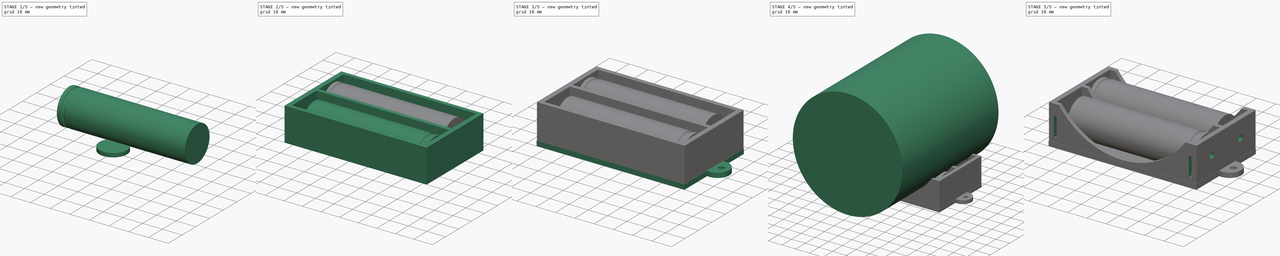
[diagram: build sequence overview — one tinted view per stage of 5, left to right]
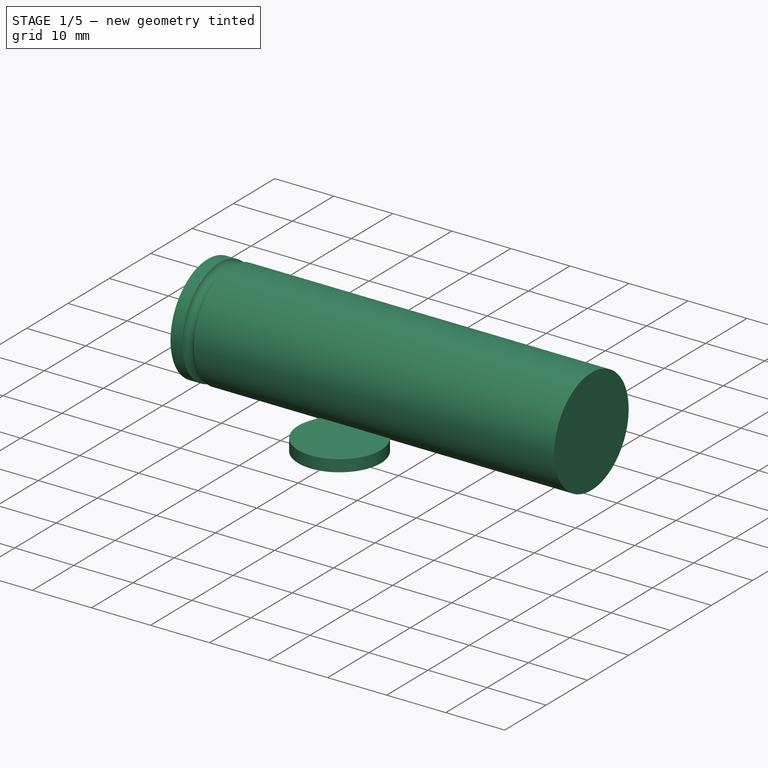
[diagram: stage 1 of 5 — iso view after this stage's code; geometry added in this stage tinted green]
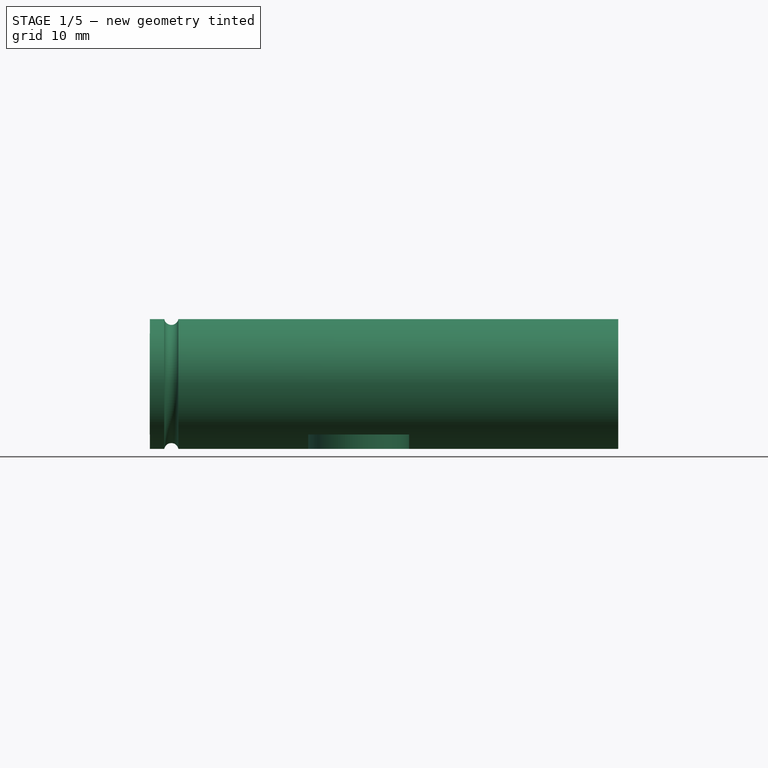
[diagram: stage 1 of 5 — front view after this stage's code; geometry added in this stage tinted green]
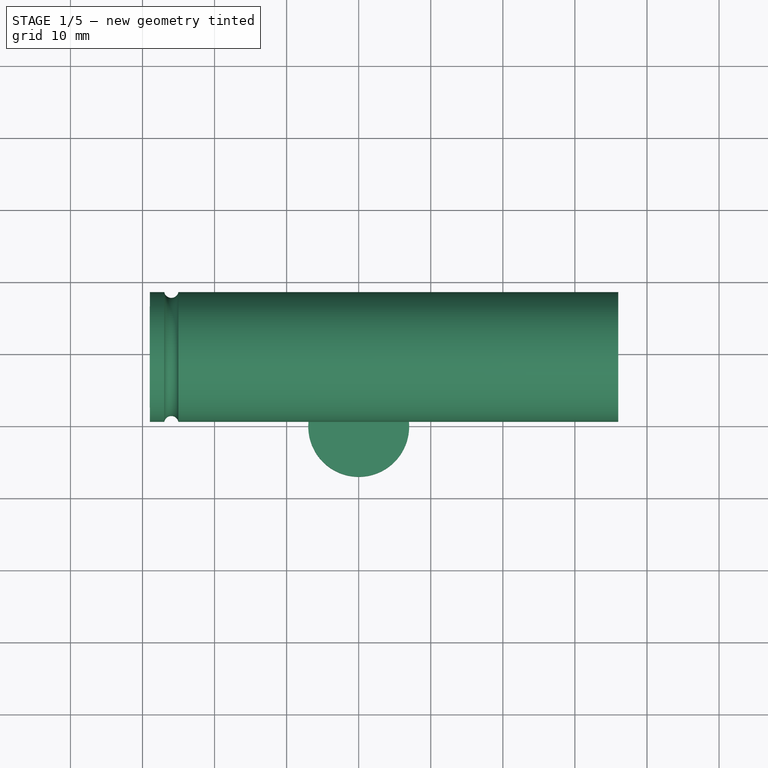
[diagram: stage 1 of 5 — top view after this stage's code; geometry added in this stage tinted green]
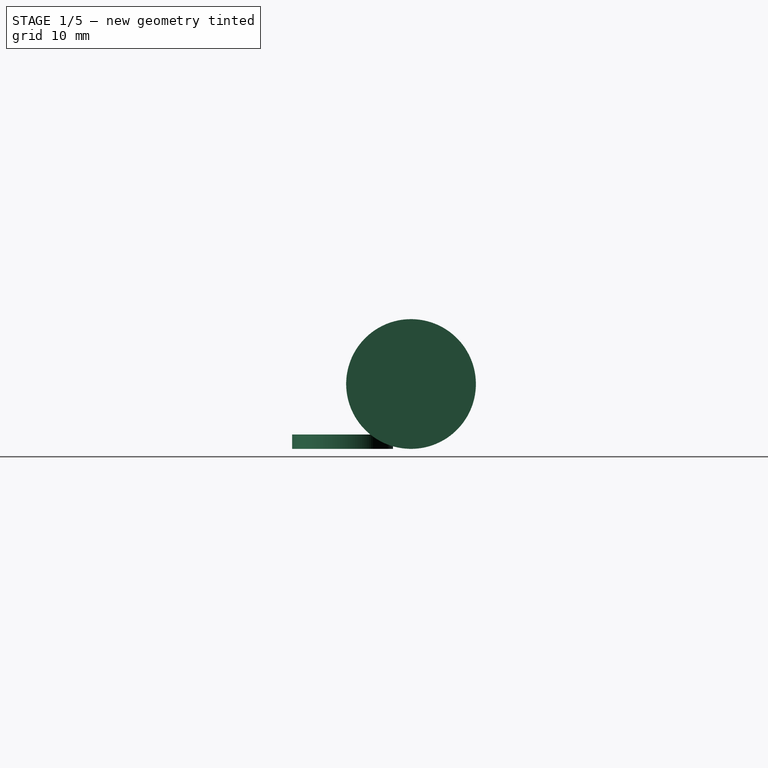
[diagram: stage 1 of 5 — right view after this stage's code; geometry added in this stage tinted green]
FCSTD DOCUMENT  (FreeCAD 0.18R16131 (Git))
Label: CajaBateriaLipo
License: All rights reserved
LicenseURL: http://en.wikipedia.org/wiki/All_rights_reserved
objects: Part::Cylinder×13, Part::MultiFuse×8, Part::Extrusion×7, Part::Cut×5, Part::Part2DObjectPython×4, Part::Torus×2, Sketcher::SketchObject×1, Part::Box×1
note: 41 computed .brp shape members not serialized (recipe doc carries the construction recipe); baked Part::Feature solids carry a one-line shape summary decoded from their .brp

FEATURE [Part::Torus] Torus001  label="Toro001"
  Angle1 = -180
  Angle2 = 180
  Angle3 = 360
  AttacherType = Attacher::AttachEngine3D
  Placement = pos=(0,0,3) rot=(0,0,1;0rad)
  Radius1 = 9.2
  Radius2 = 1
FEATURE [Part::Cylinder] Cylinder004  label="Cilindro004"
  Angle = 360
  AttacherType = Attacher::AttachEngine3D
  Height = 2
  Radius = 7
FEATURE [Part::Cylinder] Cylinder002  label="Cilindro002"
  Angle = 360
  AttacherType = Attacher::AttachEngine3D
  Height = 2
  Radius = 7
FEATURE [Part::Cylinder] Cylinder005  label="Cilindro005"
  Angle = 360
  AttacherType = Attacher::AttachEngine3D
  Height = 65
  Placement = pos=(0,0,0.02) rot=(0,0,1;0rad)
  Radius = 9
FEATURE [Part::Cut] Cut001
  Base = -> Cylinder005
  Tool = -> Torus001
FEATURE [Part::Cylinder] Cylinder003  label="Cilindro003"
  Angle = 360
  AttacherType = Attacher::AttachEngine3D
  Height = 2
  Radius = 4.5
FEATURE [Part::MultiFuse] Fusion001  label="Lipo 18651"
  Placement = pos=(-29,9.5,9) rot=(0,1,0;1.5708rad)
  Shapes = -> [Cut001,Cylinder003,Cylinder004]
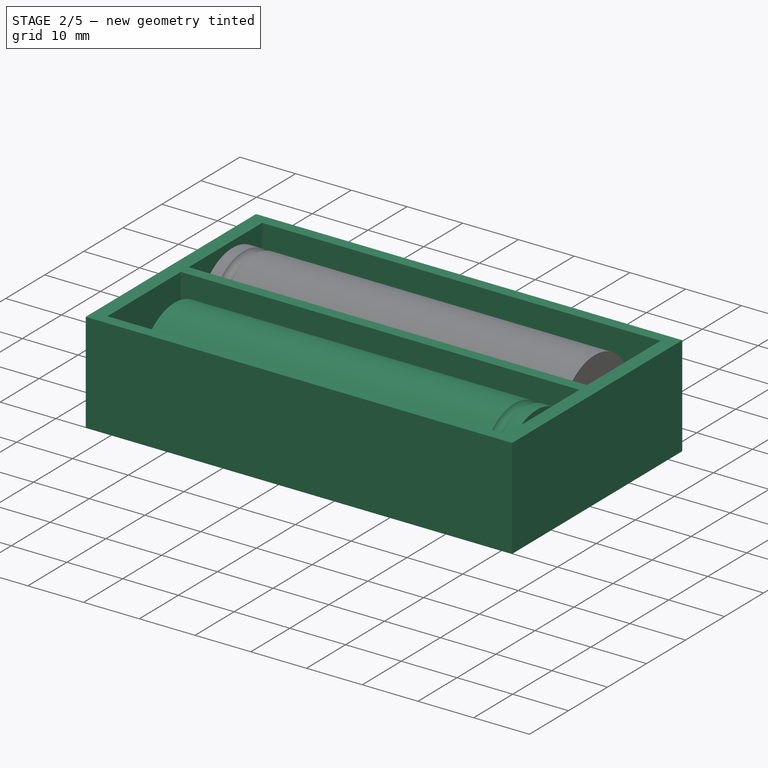
[diagram: stage 2 of 5 — iso view after this stage's code; geometry added in this stage tinted green]
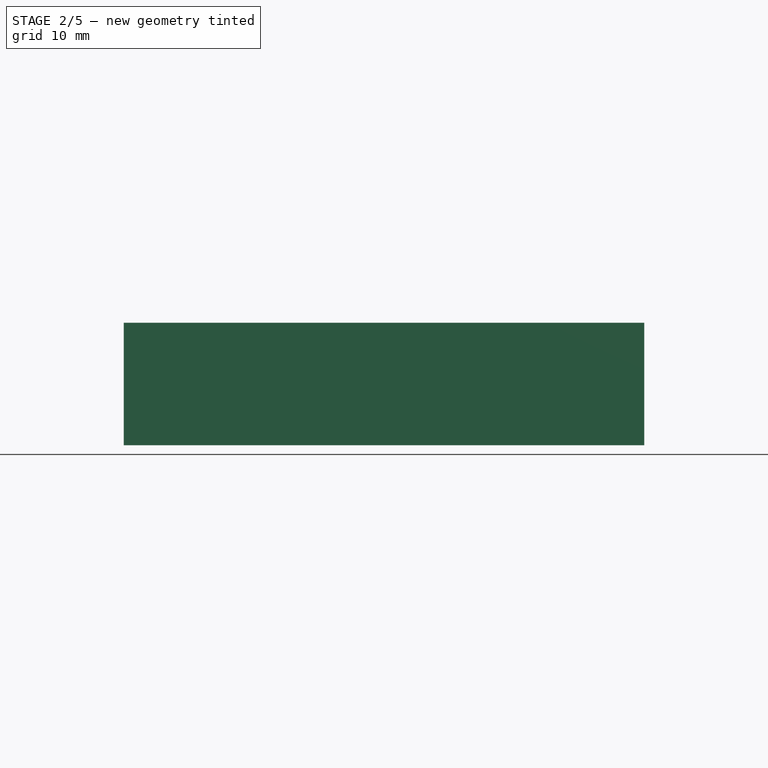
[diagram: stage 2 of 5 — front view after this stage's code; geometry added in this stage tinted green]
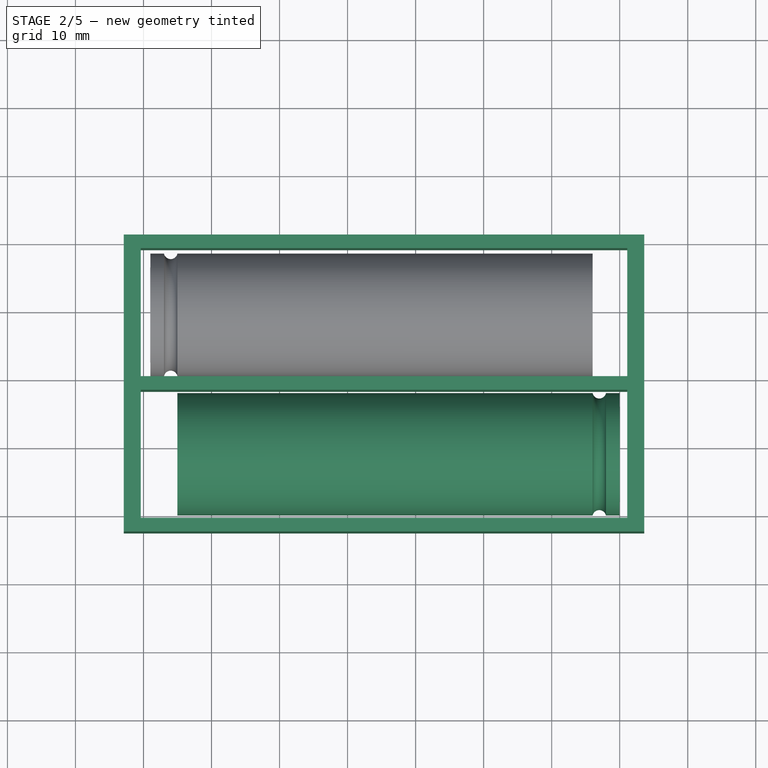
[diagram: stage 2 of 5 — top view after this stage's code; geometry added in this stage tinted green]
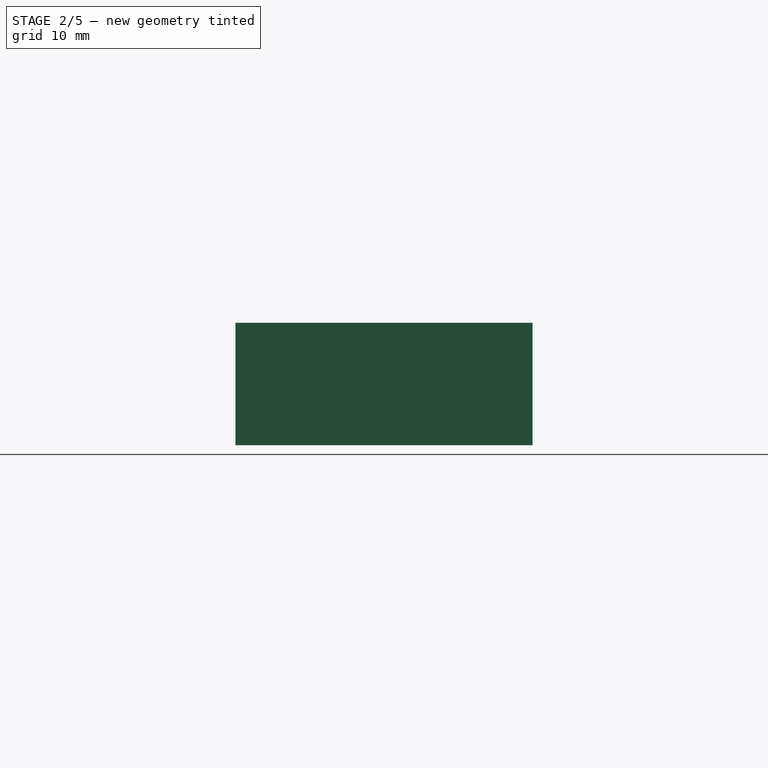
[diagram: stage 2 of 5 — right view after this stage's code; geometry added in this stage tinted green]
FEATURE [Part::Extrusion] Extrude  label="Caja lateral"
  Base = -> Sketch
  Dir = (0,0,1)
  DirMode = 2
  FaceMakerClass = Part::FaceMakerBullseye
  LengthFwd = 18
  LengthRev = 0
  Solid = true
  Symmetric = false
FEATURE [Part::Torus] Torus  label="Toro"
  Angle1 = -180
  Angle2 = 180
  Angle3 = 360
  AttacherType = Attacher::AttachEngine3D
  Placement = pos=(0,0,3) rot=(0,0,1;0rad)
  Radius1 = 9.2
  Radius2 = 1
FEATURE [Part::Cylinder] Cylinder  label="Cilindro"
  Angle = 360
  AttacherType = Attacher::AttachEngine3D
  Height = 65
  Placement = pos=(0,0,0.02) rot=(0,0,1;0rad)
  Radius = 9
FEATURE [Part::Cut] Cut007
  Base = -> Cylinder
  Tool = -> Torus
FEATURE [Part::Cylinder] Cylinder001  label="Cilindro001"
  Angle = 360
  AttacherType = Attacher::AttachEngine3D
  Height = 2
  Radius = 4.5
FEATURE [Part::MultiFuse] Fusion008  label="Lipo 18650"
  Placement = pos=(40,-11,9) rot=(0,-1,0;1.5708rad)
  Shapes = -> [Cut007,Cylinder001,Cylinder002]
FEATURE [Part::MultiFuse] Fusion009  label="Baterias"
  Shapes = -> [Fusion008,Fusion001]
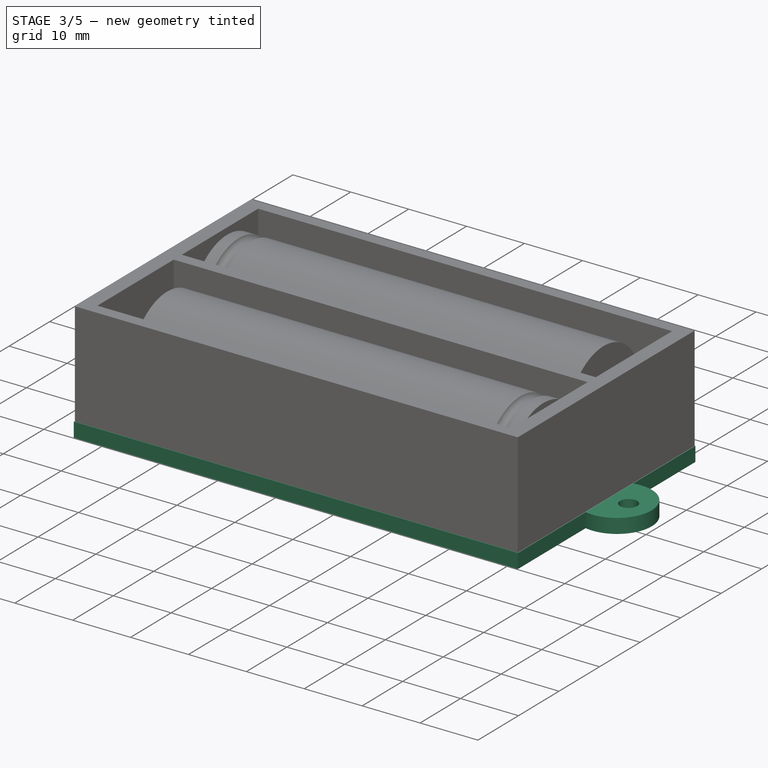
[diagram: stage 3 of 5 — iso view after this stage's code; geometry added in this stage tinted green]
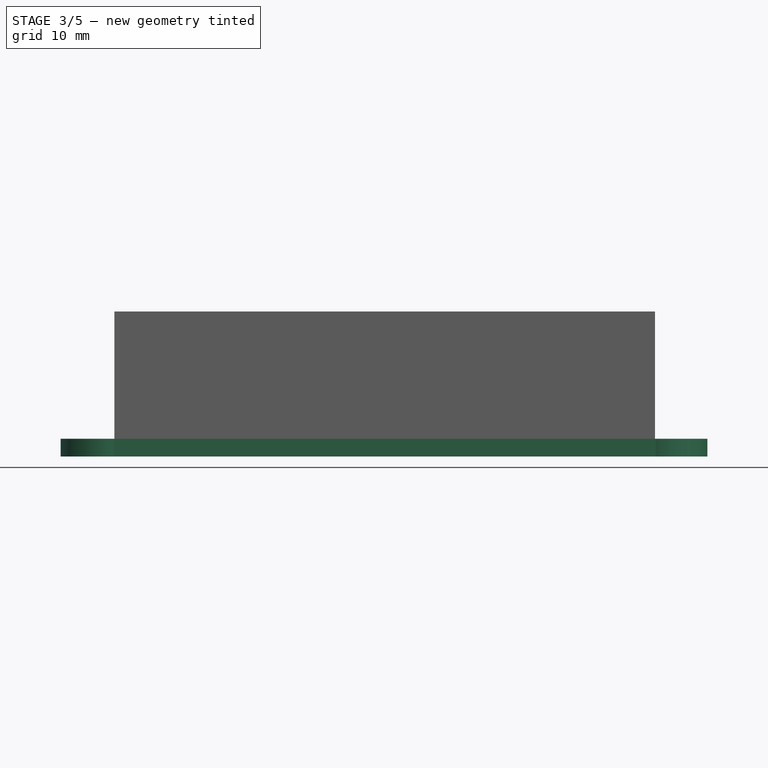
[diagram: stage 3 of 5 — front view after this stage's code; geometry added in this stage tinted green]
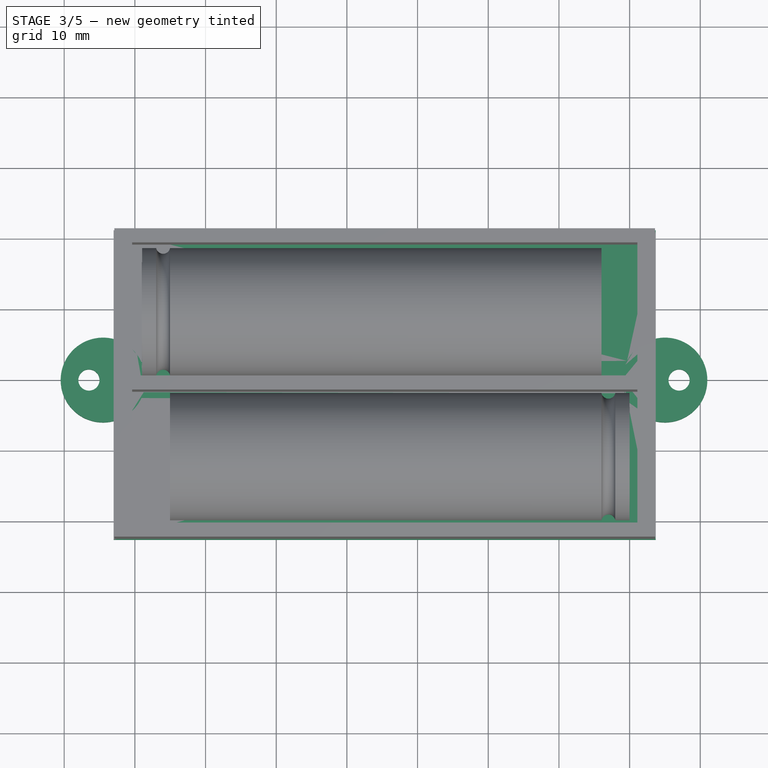
[diagram: stage 3 of 5 — top view after this stage's code; geometry added in this stage tinted green]
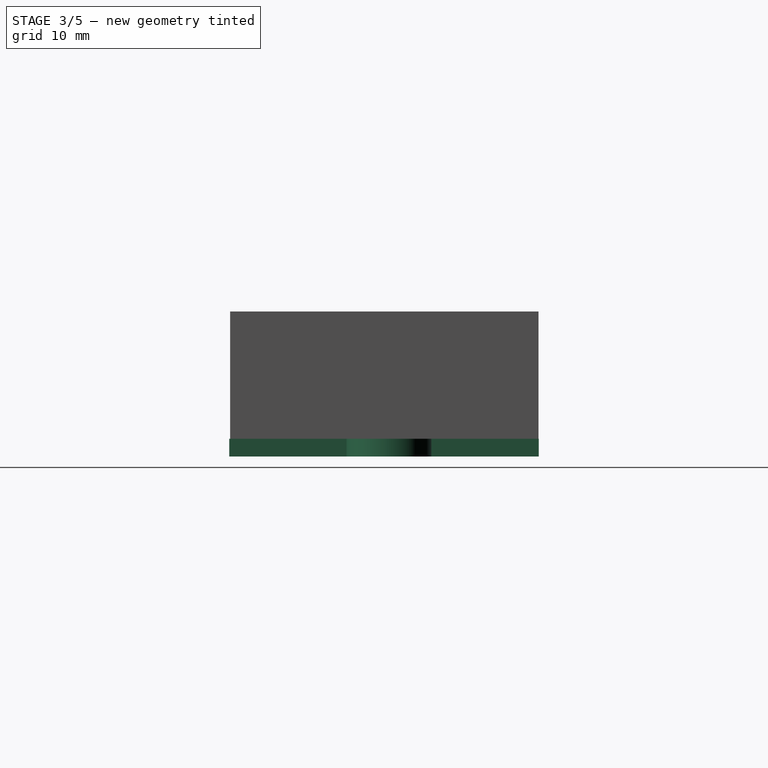
[diagram: stage 3 of 5 — right view after this stage's code; geometry added in this stage tinted green]
FEATURE [Sketcher::SketchObject] Sketch
  MapMode = 5
  Support = -> [XY_Plane]
  sketch-geometry (12):
    g0: LineSegment StartX=-30.3963 StartY=19.1596 StartZ=0 EndX=41.1037 EndY=19.1596 EndZ=0
    g1: LineSegment StartX=41.1037 StartY=19.1596 StartZ=0 EndX=41.1037 EndY=0.339636 EndZ=0
    g2: LineSegment StartX=41.1037 StartY=-20.4804 StartZ=0 EndX=-30.3963 EndY=-20.4804 EndZ=0
    g3: LineSegment StartX=-30.3963 StartY=-20.4804 StartZ=0 EndX=-30.3963 EndY=-1.66036 EndZ=0
    g4: LineSegment StartX=-32.8963 StartY=21.1596 StartZ=0 EndX=43.6037 EndY=21.1596 EndZ=0
    g5: LineSegment StartX=43.6037 StartY=21.1596 StartZ=0 EndX=43.6037 EndY=-22.4804 EndZ=0
    g6: LineSegment StartX=43.6037 StartY=-22.4804 StartZ=0 EndX=-32.8963 EndY=-22.4804 EndZ=0
    g7: LineSegment StartX=-32.8963 StartY=-22.4804 StartZ=0 EndX=-32.8963 EndY=21.1596 EndZ=0
    g8: LineSegment StartX=-30.3963 StartY=0.339636 StartZ=0 EndX=41.1037 EndY=0.339636 EndZ=0
    g9: LineSegment StartX=-30.3963 StartY=-1.66036 StartZ=0 EndX=41.1037 EndY=-1.66036 EndZ=0
    g10: LineSegment StartX=-30.3963 StartY=0.339636 StartZ=0 EndX=-30.3963 EndY=19.1596 EndZ=0
    g11: LineSegment StartX=41.1037 StartY=-1.66036 StartZ=0 EndX=41.1037 EndY=-20.4804 EndZ=0
  constraints (32):
    c: Coincident(g0,g1)
    c: Coincident(g11,g2)
    c: Coincident(g2,g3)
    c: Coincident(g10,g0)
    c: Horizontal(g0)
    c: Horizontal(g2)
    c: Vertical(g1)
    c: Vertical(g3)
    c: DistanceX(g0,g0) = 71.5
    c: Coincident(g4,g5)
    c: Coincident(g5,g6)
    c: Coincident(g6,g7)
    c: Coincident(g7,g4)
    c: Horizontal(g4)
    c: Horizontal(g6)
    c: Vertical(g5)
    c: Vertical(g7)
    c: DistanceY(g0,g4) = 2
    c: DistanceX(g4,g0) = 2.5
    c: DistanceX(g0,g4) = 2.5
    c: Horizontal(g8)
    c: Horizontal(g9)
    c: Coincident(g3,g9)
    c: Coincident(g10,g8)
    c: Tangent(g3,g10)
    c: Coincident(g1,g8)
    c: Coincident(g11,g9)
    c: Tangent(g1,g11)
    c: DistanceY(g11,g11) = 18.82
    c: Equal(g1,g11)
    c: DistanceY(g9,g1) = 2
    c: DistanceY(g6,g2) = 2
FEATURE [Part::Box] Box  label="Cubo"
  AttacherType = Attacher::AttachEngine3D
  Height = 2.5
  Length = 76.7
  Placement = pos=(-33,-22.6,-2.5) rot=(0,0,1;0rad)
  Width = 43.8
FEATURE [Part::Cylinder] Cylinder011  label="Cilindro011"
  Angle = 360
  AttacherType = Attacher::AttachEngine3D
  Height = 10
  Placement = pos=(46,0,-5) rot=(0,0,1;0rad)
  Radius = 1.5
FEATURE [Part::Cylinder] Cylinder010  label="Cilindro010"
  Angle = 360
  AttacherType = Attacher::AttachEngine3D
  Height = 2.5
  Placement = pos=(44,0,-2.5) rot=(0,0,1;0rad)
  Radius = 6
FEATURE [Part::Cut] Cut006
  Base = -> Cylinder010
  Placement = pos=(1,0,0) rot=(0,0,1;0rad)
  Tool = -> Cylinder011
FEATURE [Part::Cylinder] Cylinder008  label="Cilindro008"
  Angle = 360
  AttacherType = Attacher::AttachEngine3D
  Height = 2.5
  Placement = pos=(-37,0,-2.5) rot=(0,0,1;0rad)
  Radius = 6
FEATURE [Part::Cylinder] Cylinder009  label="Cilindro009"
  Angle = 360
  AttacherType = Attacher::AttachEngine3D
  Height = 10
  Placement = pos=(-39,0,-5) rot=(0,0,1;0rad)
  Radius = 1.5
FEATURE [Part::Cut] Cut005
  Base = -> Cylinder008
  Placement = pos=(2.5,0,0) rot=(0,0,1;0rad)
  Tool = -> Cylinder009
FEATURE [Part::MultiFuse] Fusion004  label="Base"
  Shapes = -> [Cut005,Cut006,Box]
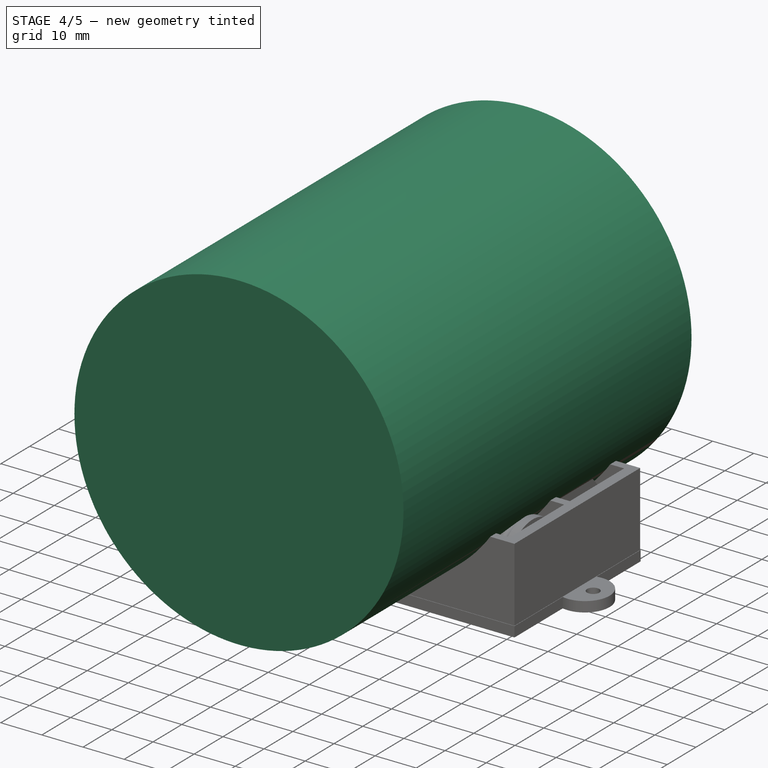
[diagram: stage 4 of 5 — iso view after this stage's code; geometry added in this stage tinted green]
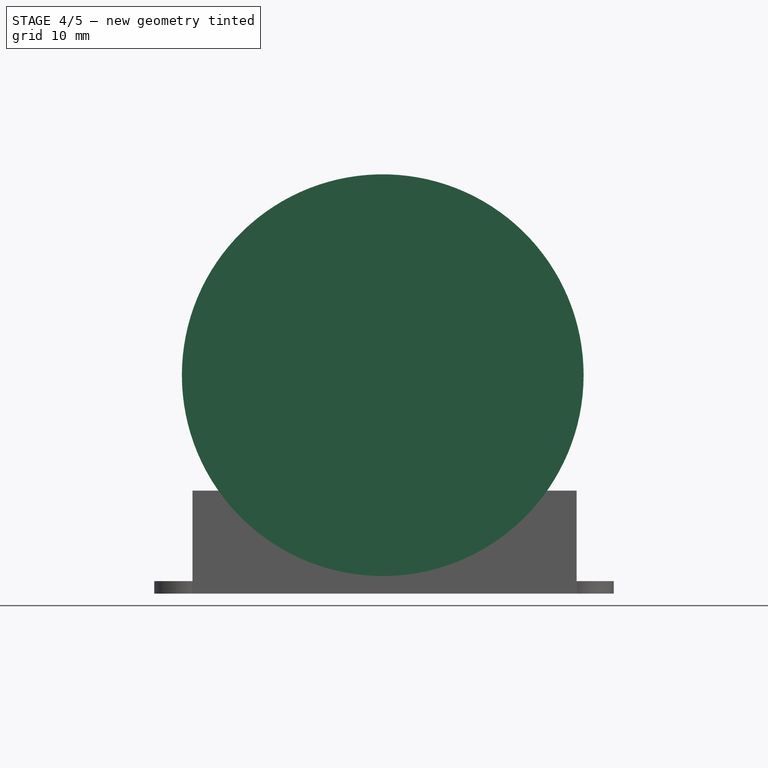
[diagram: stage 4 of 5 — front view after this stage's code; geometry added in this stage tinted green]
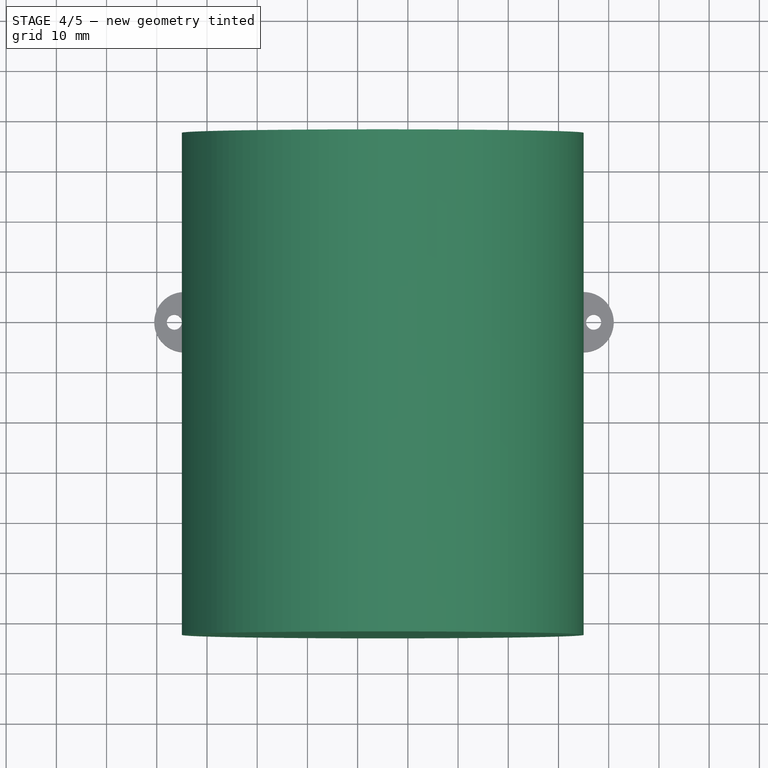
[diagram: stage 4 of 5 — top view after this stage's code; geometry added in this stage tinted green]
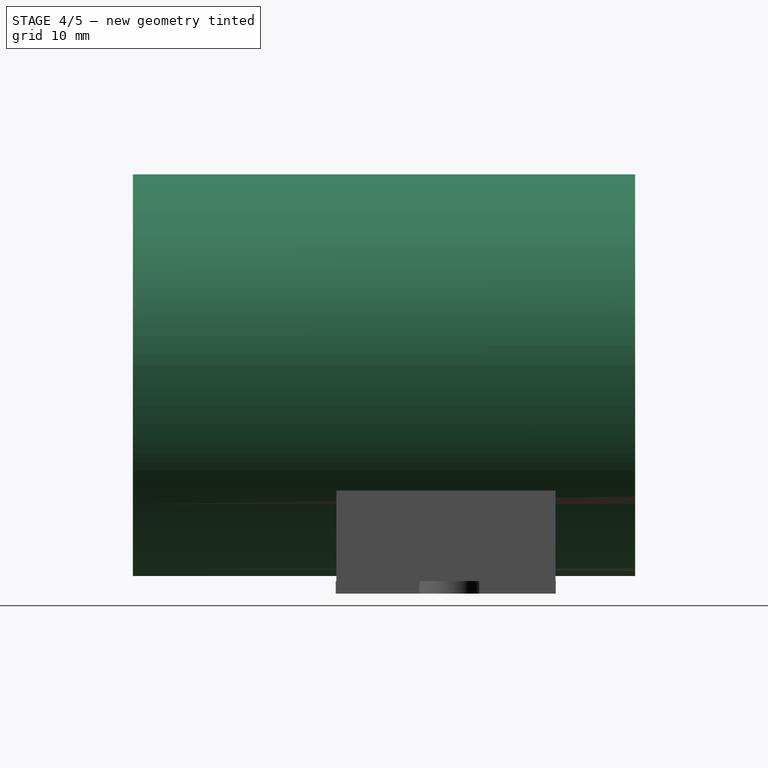
[diagram: stage 4 of 5 — right view after this stage's code; geometry added in this stage tinted green]
FEATURE [Part::Part2DObjectPython] ShapeString  # Draft 2D object (typed FeaturePython)
  FontFile = C:/Program Files/FreeCAD 0.16/Tipos/OpenSans-Regular.ttf
  Placement = pos=(26.9,7.79,1) rot=(0,0,1;0rad)
  Size = 10
  String = +
  Tracking = 0
FEATURE [Part::Part2DObjectPython] ShapeString001  # Draft 2D object (typed FeaturePython)
  FontFile = C:/Program Files/FreeCAD 0.16/Tipos/OpenSans-Regular.ttf
  Placement = pos=(-26.1,-15.21,1) rot=(0,0,1;0rad)
  Size = 10
  String = +
  Tracking = 0
FEATURE [Part::Part2DObjectPython] ShapeString002  # Draft 2D object (typed FeaturePython)
  FontFile = C:/Program Files/FreeCAD 0.16/Tipos/OpenSans-Regular.ttf
  Placement = pos=(-20.1,9.79,1) rot=(0,0,1;1.5708rad)
  Size = 10
  String = -
  Tracking = 0
FEATURE [Part::Part2DObjectPython] ShapeString003  # Draft 2D object (typed FeaturePython)
  FontFile = C:/Program Files/FreeCAD 0.16/Tipos/OpenSans-Regular.ttf
  Placement = pos=(32.9,-12.21,1) rot=(0,0,1;1.5708rad)
  Size = 10
  String = -
  Tracking = 0
FEATURE [Part::Extrusion] Extrude005
  Base = -> ShapeString001
  Dir = (0,0,1)
  DirMode = 2
  FaceMakerClass = Part::FaceMakerBullseye
  LengthFwd = 10
  LengthRev = 0
  Placement = pos=(56,0,-2) rot=(0,0,1;0rad)
  Solid = false
  Symmetric = false
FEATURE [Part::Extrusion] Extrude003
  Base = -> ShapeString
  Dir = (0,0,1)
  DirMode = 2
  FaceMakerClass = Part::FaceMakerBullseye
  LengthFwd = 10
  LengthRev = 0
  Placement = pos=(-53,-2,-2) rot=(0,0,1;0rad)
  Solid = false
  Symmetric = false
FEATURE [Part::Extrusion] Extrude004
  Base = -> ShapeString002
  Dir = (0,0,1)
  DirMode = 2
  FaceMakerClass = Part::FaceMakerBullseye
  LengthFwd = 10
  LengthRev = 0
  Placement = pos=(56,-2,-2) rot=(0,0,1;0rad)
  Solid = false
  Symmetric = false
FEATURE [Part::Extrusion] Extrude006
  Base = -> ShapeString003
  Dir = (0,0,1)
  DirMode = 2
  FaceMakerClass = Part::FaceMakerBullseye
  LengthFwd = 10
  LengthRev = 0
  Placement = pos=(-53,-0.5,-2) rot=(0,0,1;0rad)
  Solid = false
  Symmetric = false
FEATURE [Part::MultiFuse] Fusion006  label="Letras"
  Shapes = -> [Extrude003,Extrude004,Extrude005,Extrude006]
FEATURE [Part::Cylinder] Cylinder012  label="Cilindro012"
  Angle = 360
  AttacherType = Attacher::AttachEngine3D
  Height = 100
  Placement = pos=(5,37,41) rot=(1,0,0;1.5708rad)
  Radius = 40
FEATURE [Part::MultiFuse] Fusion007  label="Caja"
  Shapes = -> [Fusion004,Extrude]
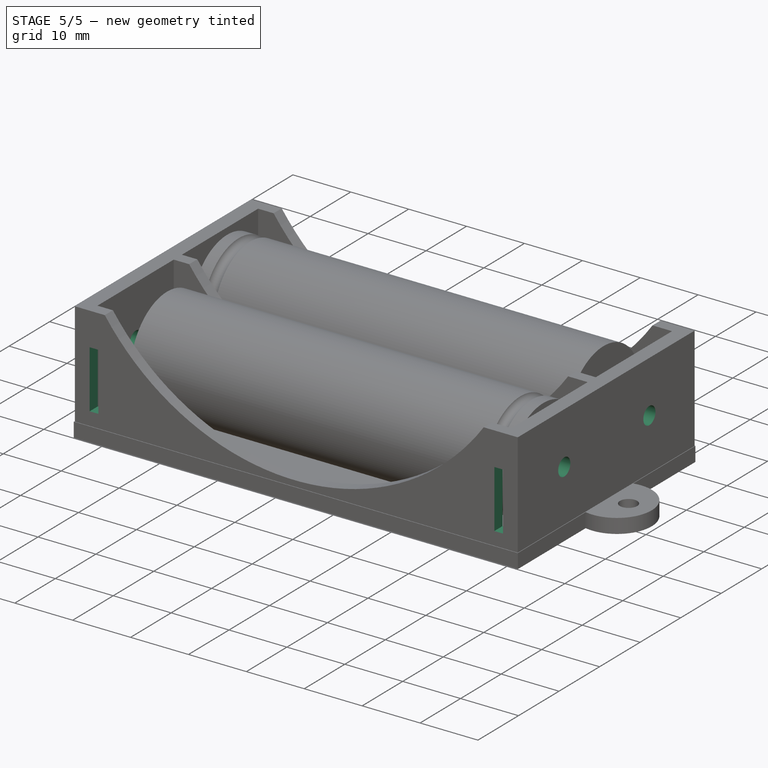
[diagram: stage 5 of 5 — iso view after this stage's code; geometry added in this stage tinted green]
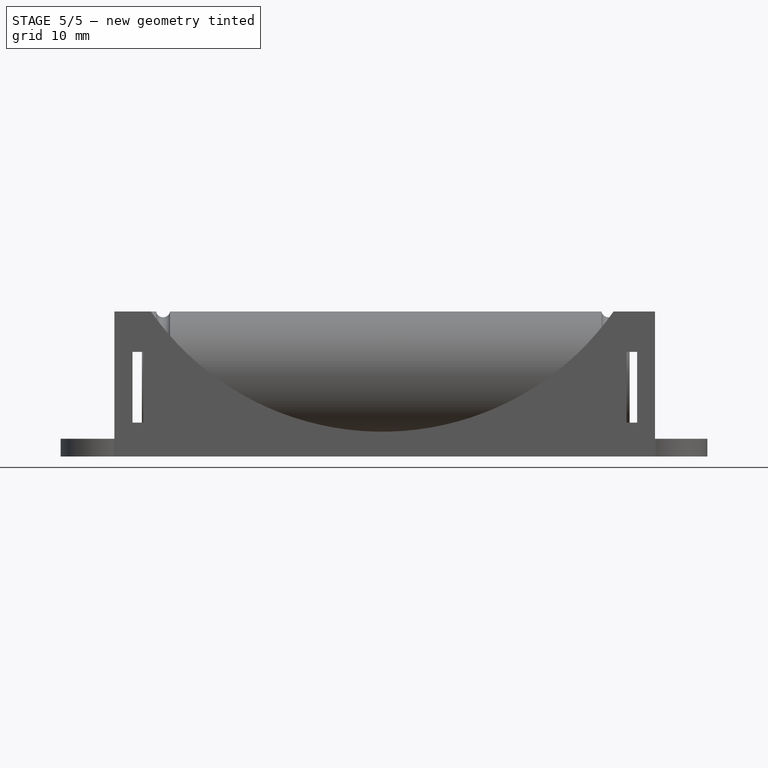
[diagram: stage 5 of 5 — front view after this stage's code; geometry added in this stage tinted green]
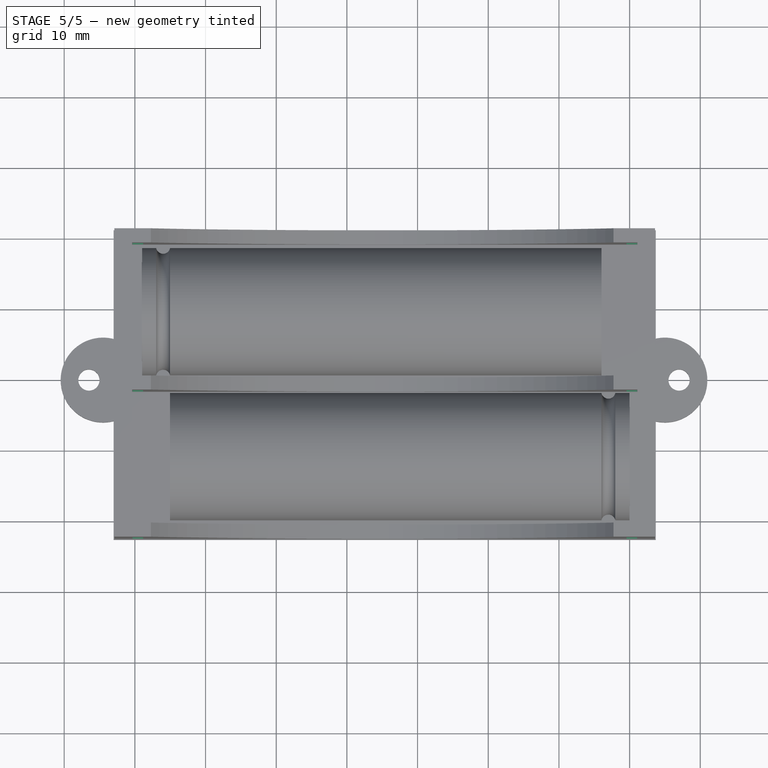
[diagram: stage 5 of 5 — top view after this stage's code; geometry added in this stage tinted green]
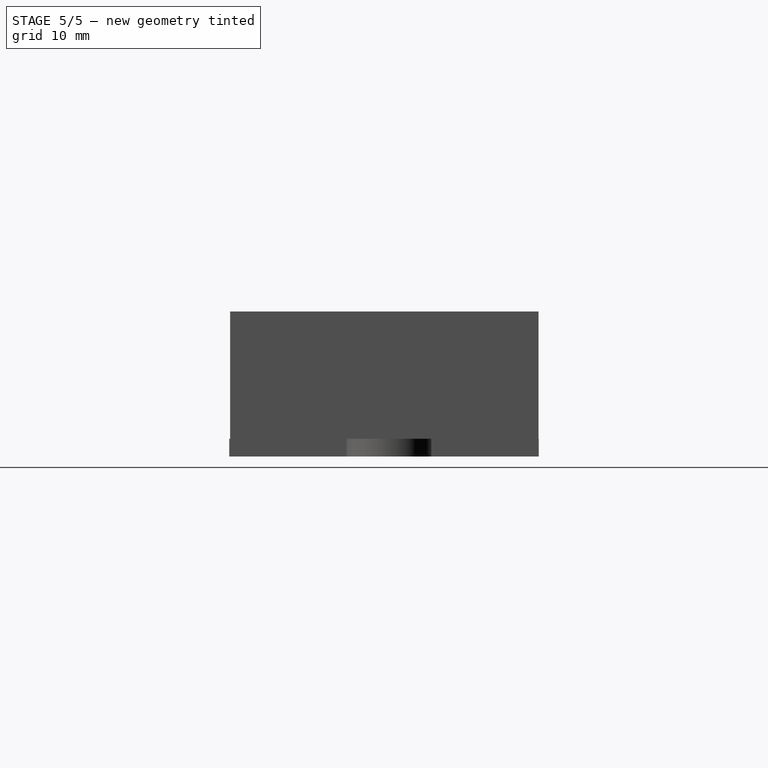
[diagram: stage 5 of 5 — right view after this stage's code; geometry added in this stage tinted green]
FEATURE [Part::Extrusion] Extrude001  label="Ranura 1"
  Dir = (0,-1,-2e-16)
  DirMode = 2
  FaceMakerClass = Part::FaceMakerBullseye
  LengthFwd = 56
  LengthRev = 1
  Placement = pos=(3,26,0) rot=(0,0,1;0rad)
  Solid = true
  Symmetric = false
FEATURE [Part::Extrusion] Extrude002  label="Ranura 2"
  Dir = (0,-1,-2e-16)
  DirMode = 2
  FaceMakerClass = Part::FaceMakerBullseye
  LengthFwd = 56
  LengthRev = 1
  Placement = pos=(72.9,26,0) rot=(0,0,1;0rad)
  Solid = true
  Symmetric = false
FEATURE [Part::Cylinder] Cylinder007  label="Cilindro007"
  Angle = 360
  AttacherType = Attacher::AttachEngine3D
  Height = 81
  Placement = pos=(-37,10,9) rot=(0,1,0;1.5708rad)
  Radius = 1.5
FEATURE [Part::Cylinder] Cylinder006  label="Cilindro006"
  Angle = 360
  AttacherType = Attacher::AttachEngine3D
  Height = 81
  Placement = pos=(-37,-11,9) rot=(0,1,0;1.5708rad)
  Radius = 1.5
FEATURE [Part::MultiFuse] Fusion003  label="Taladros"
  Shapes = -> [Cylinder006,Cylinder007]
FEATURE [Part::MultiFuse] Fusion  label="Vaciado"
  Shapes = -> [Extrude001,Extrude002,Fusion003,Fusion006,Cylinder012]
FEATURE [Part::Cut] Cut  label="Porta Lipo 2S"
  Base = -> Fusion007
  Tool = -> Fusion
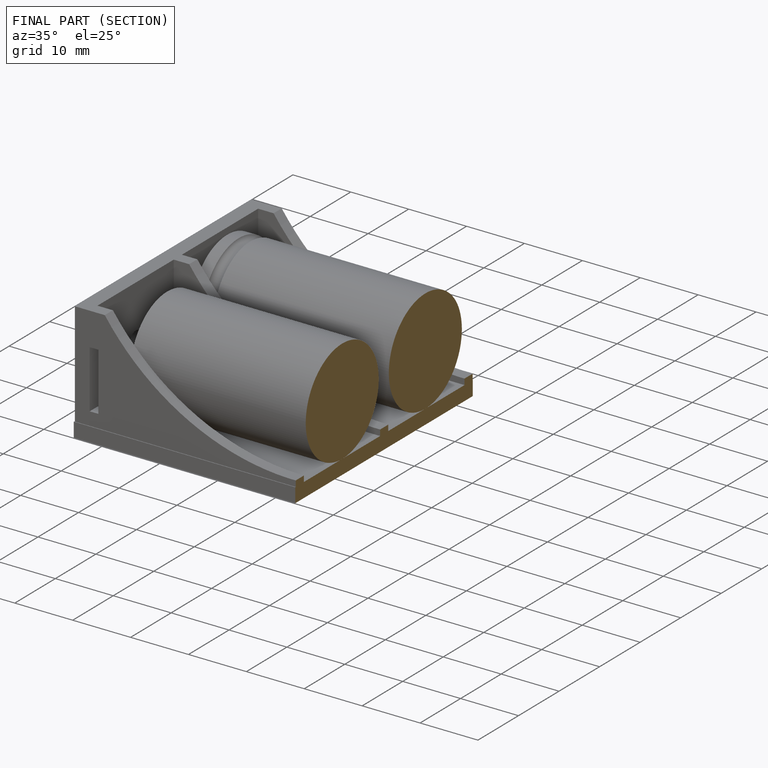
[diagram: finished part — half-section view (interior)]
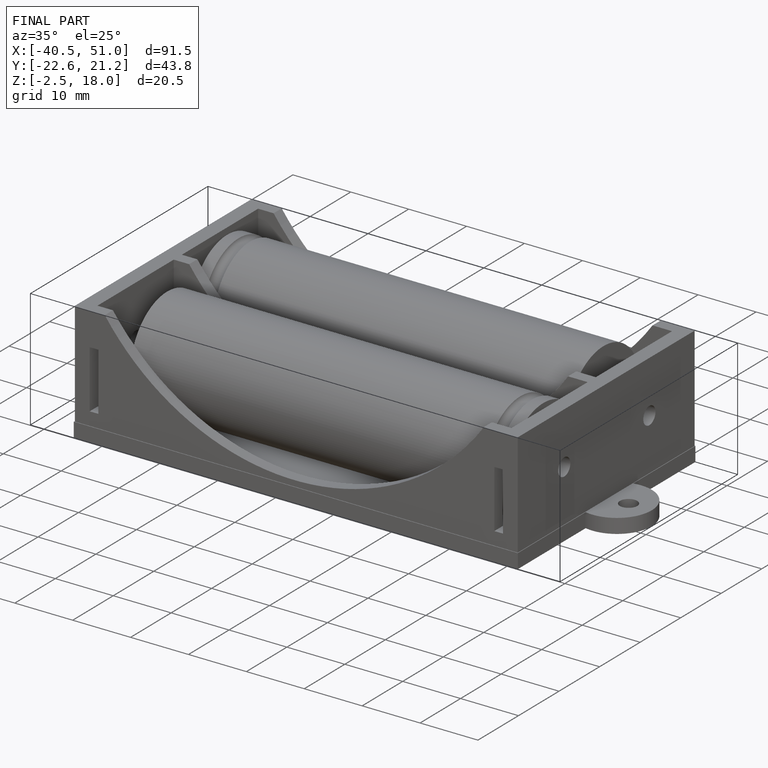
[diagram: finished part — iso view with bounding-box wireframe]
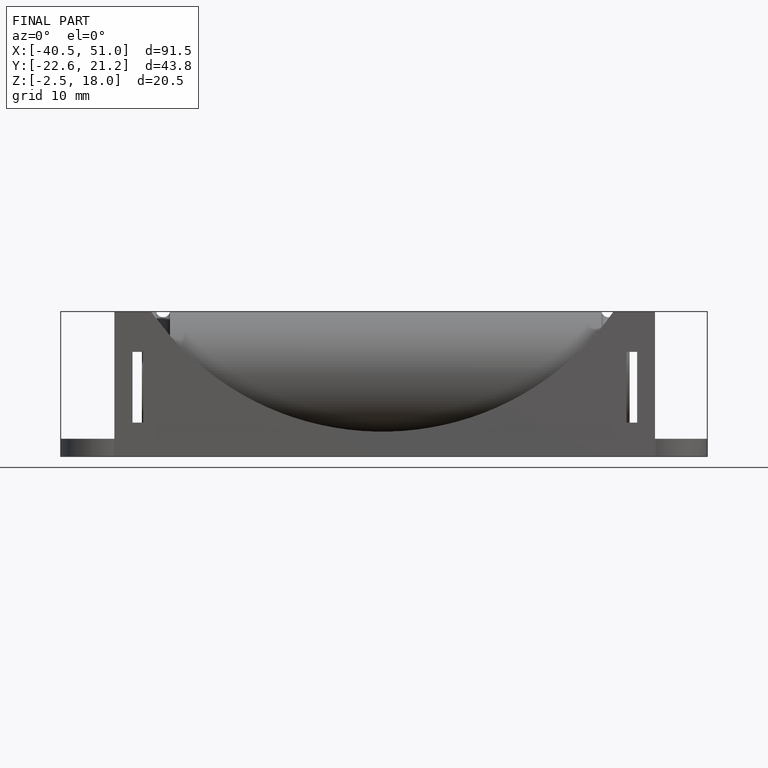
[diagram: finished part — front view with bounding-box wireframe]
